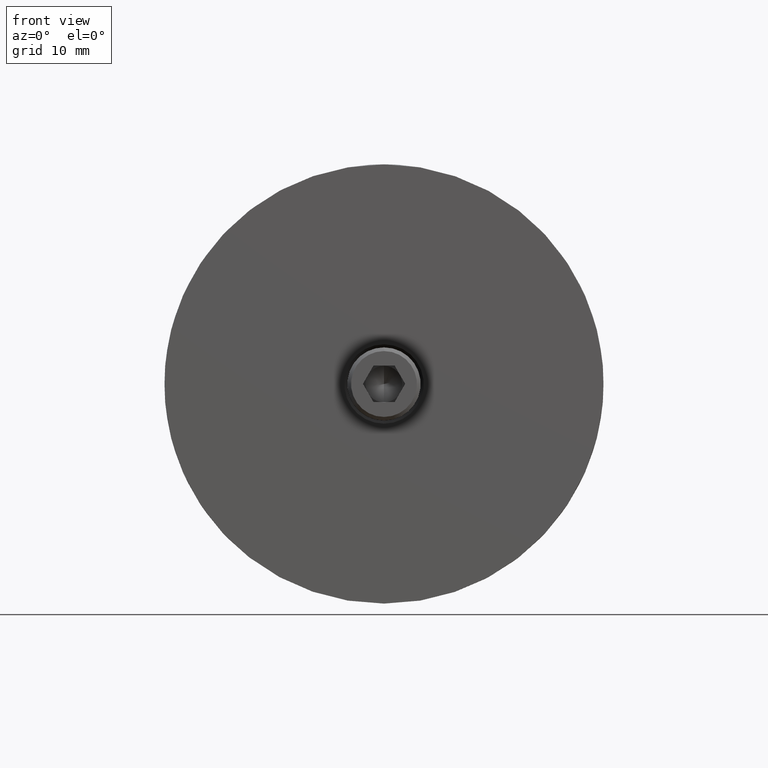
[diagram: clean part render]
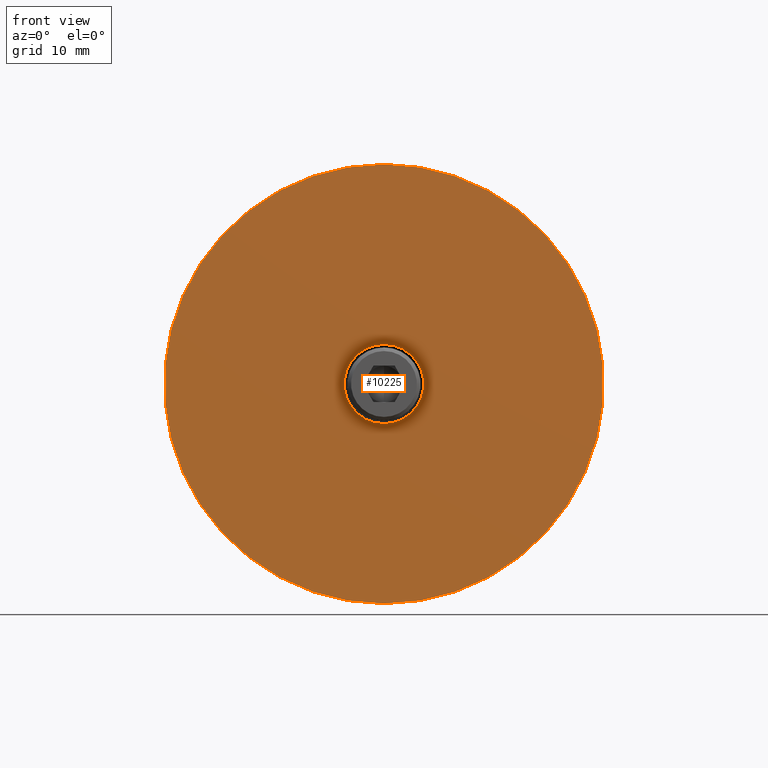
[diagram: same view with one face highlighted and labeled with its STEP entity id]
A machine part, front view. The second image highlights one B-rep face of the part: STEP entity #10225.
In plain terms, the highlighted planar face has unit normal (0, -1, 0).
Its self-contained STEP definition (entity closure, byte-faithful):
#113 = CIRCLE ( 'NONE', #11287, 6.500000000000019540 ) ;
#606 = DIRECTION ( 'NONE',  ( 0.000000000000000000, 0.000000000000000000, -1.000000000000000000 ) ) ;
#822 = CARTESIAN_POINT ( 'NONE',  ( 7.960204194457819143E-16, 0.000000000000000000, 6.500000000000019540 ) ) ;
#1434 = DIRECTION ( 'NONE',  ( -0.000000000000000000, -1.000000000000000000, -0.000000000000000000 ) ) ;
#1709 = AXIS2_PLACEMENT_3D ( 'NONE', #5687, #9549, #6223 ) ;
#1738 = ORIENTED_EDGE ( 'NONE', *, *, #8256, .T. ) ;
#2020 = EDGE_LOOP ( 'NONE', ( #1738, #4055 ) ) ;
#2889 = CARTESIAN_POINT ( 'NONE',  ( 0.000000000000000000, 0.000000000000000000, -6.500000000000019540 ) ) ;
#3627 = ORIENTED_EDGE ( 'NONE', *, *, #9444, .T. ) ;
#3732 = AXIS2_PLACEMENT_3D ( 'NONE', #3893, #7117, #606 ) ;
#3893 = CARTESIAN_POINT ( 'NONE',  ( 0.000000000000000000, 0.000000000000000000, 0.000000000000000000 ) ) ;
#4055 = ORIENTED_EDGE ( 'NONE', *, *, #11900, .T. ) ;
#4655 = CARTESIAN_POINT ( 'NONE',  ( 0.000000000000000000, 0.000000000000000000, 0.000000000000000000 ) ) ;
#4672 = CARTESIAN_POINT ( 'NONE',  ( 0.000000000000000000, 0.000000000000000000, 0.000000000000000000 ) ) ;
#4762 = VERTEX_POINT ( 'NONE', #6187 ) ;
#5375 = CIRCLE ( 'NONE', #6545, 6.500000000000019540 ) ;
#5687 = CARTESIAN_POINT ( 'NONE',  ( 36.00000000000000000, 0.000000000000000000, 0.000000000000000000 ) ) ;
#6091 = CIRCLE ( 'NONE', #3732, 36.00000000000000000 ) ;
#6187 = CARTESIAN_POINT ( 'NONE',  ( 0.000000000000000000, 0.000000000000000000, -36.00000000000000000 ) ) ;
#6223 = DIRECTION ( 'NONE',  ( 0.000000000000000000, 0.000000000000000000, -1.000000000000000000 ) ) ;
#6364 = EDGE_LOOP ( 'NONE', ( #3627, #13312 ) ) ;
#6545 = AXIS2_PLACEMENT_3D ( 'NONE', #4655, #9108, #13650 ) ;
#6915 = DIRECTION ( 'NONE',  ( 0.000000000000000000, 0.000000000000000000, -1.000000000000000000 ) ) ;
#6962 = CARTESIAN_POINT ( 'NONE',  ( 0.000000000000000000, 0.000000000000000000, 0.000000000000000000 ) ) ;
#7007 = PLANE ( 'NONE',  #1709 ) ;
#7117 = DIRECTION ( 'NONE',  ( -0.000000000000000000, -1.000000000000000000, -0.000000000000000000 ) ) ;
#7321 = VERTEX_POINT ( 'NONE', #10228 ) ;
#7623 = VERTEX_POINT ( 'NONE', #822 ) ;
#8256 = EDGE_CURVE ( 'NONE', #11112, #7623, #113, .T. ) ;
#8564 = FACE_OUTER_BOUND ( 'NONE', #6364, .T. ) ;
#9108 = DIRECTION ( 'NONE',  ( 0.000000000000000000, 1.000000000000000000, 0.000000000000000000 ) ) ;
#9444 = EDGE_CURVE ( 'NONE', #4762, #7321, #12733, .T. ) ;
#9549 = DIRECTION ( 'NONE',  ( 0.000000000000000000, -1.000000000000000000, -0.000000000000000000 ) ) ;
#10225 = ADVANCED_FACE ( 'NONE', ( #11497, #8564 ), #7007, .T. ) ;
#10228 = CARTESIAN_POINT ( 'NONE',  ( 4.408728476930470856E-15, 0.000000000000000000, 36.00000000000000000 ) ) ;
#10742 = EDGE_CURVE ( 'NONE', #7321, #4762, #6091, .T. ) ;
#11112 = VERTEX_POINT ( 'NONE', #2889 ) ;
#11287 = AXIS2_PLACEMENT_3D ( 'NONE', #6962, #12413, #6915 ) ;
#11497 = FACE_BOUND ( 'NONE', #2020, .T. ) ;
#11751 = AXIS2_PLACEMENT_3D ( 'NONE', #4672, #1434, #12461 ) ;
#11900 = EDGE_CURVE ( 'NONE', #7623, #11112, #5375, .T. ) ;
#12413 = DIRECTION ( 'NONE',  ( 0.000000000000000000, 1.000000000000000000, 0.000000000000000000 ) ) ;
#12461 = DIRECTION ( 'NONE',  ( 0.000000000000000000, 0.000000000000000000, -1.000000000000000000 ) ) ;
#12733 = CIRCLE ( 'NONE', #11751, 36.00000000000000000 ) ;
#13312 = ORIENTED_EDGE ( 'NONE', *, *, #10742, .T. ) ;
#13650 = DIRECTION ( 'NONE',  ( 0.000000000000000000, 0.000000000000000000, -1.000000000000000000 ) ) ;